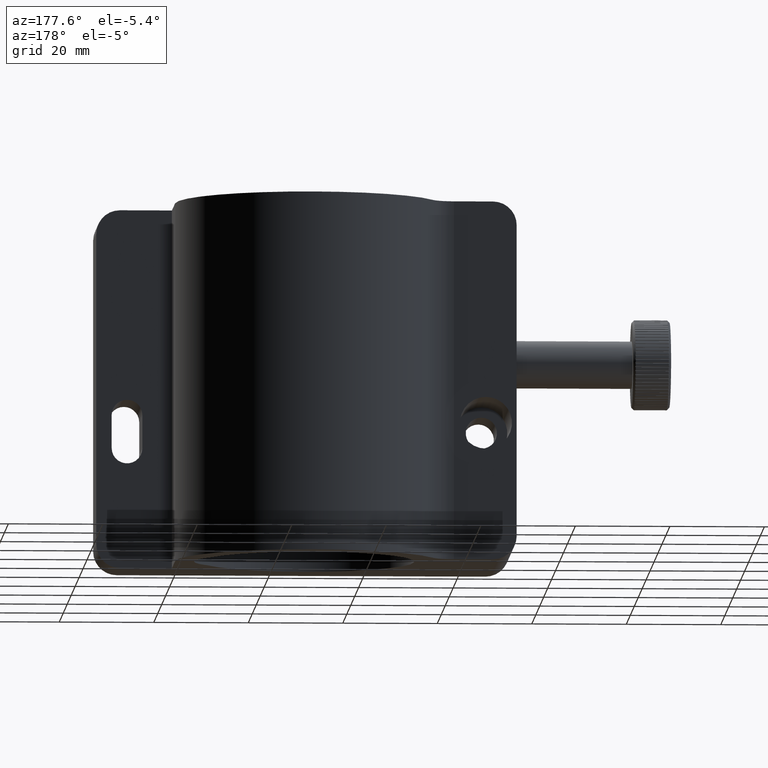
[diagram: clean part render]
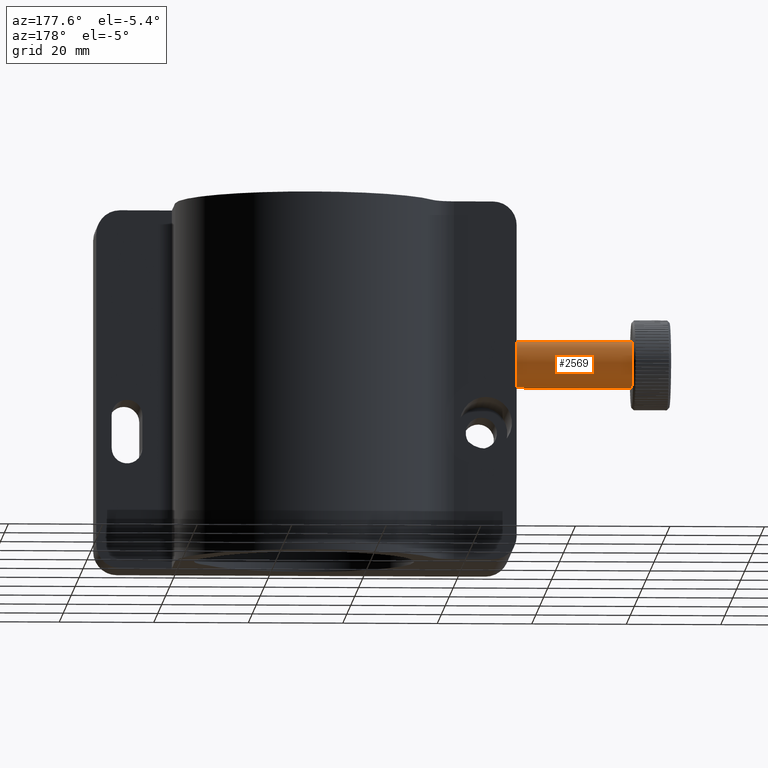
[diagram: same view with one face highlighted and labeled with its STEP entity id]
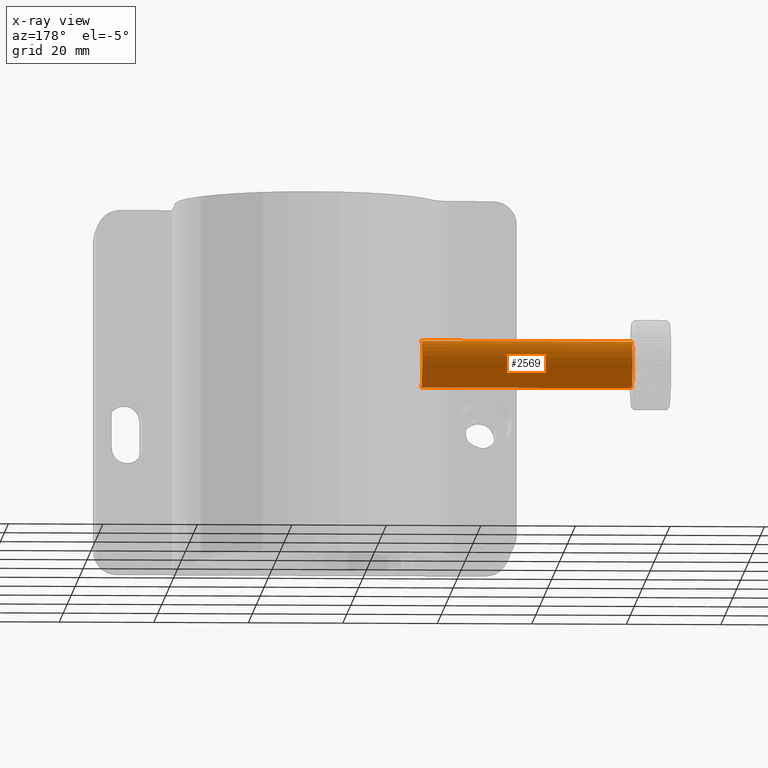
[diagram: x-ray of the same camera — body ghosted, the highlighted face saturated]
A machine part, auxiliary view. The second image highlights one B-rep face of the part: STEP entity #2569.
The next image is the same camera in x-ray: the body ghosted, the highlighted face saturated — about 0% of this face is hidden behind the body in this view.
In plain terms, the highlighted cylindrical surface (edge-blend (fillet) strip) has radius 5 mm, axis along (1, -0, -0).
Its self-contained STEP definition (entity closure, byte-faithful):
#81 = CARTESIAN_POINT ( 'NONE',  ( -96.36907623515101300, 12.38735979671795200, 8.957205155351671200 ) ) ;
#177 = LINE ( 'NONE', #3337, #2203 ) ;
#227 = CARTESIAN_POINT ( 'NONE',  ( -96.36907623515101300, 12.38735979671795200, 8.957205155351671200 ) ) ;
#294 = ORIENTED_EDGE ( 'NONE', *, *, #8518, .F. ) ;
#829 = EDGE_CURVE ( 'NONE', #3169, #7233, #4644, .T. ) ;
#1601 = EDGE_CURVE ( 'NONE', #3923, #3169, #8323, .T. ) ;
#1818 = CARTESIAN_POINT ( 'NONE',  ( -51.86907623515104900, 13.04013621154531100, 3.999999999999990700 ) ) ;
#1924 = CARTESIAN_POINT ( 'NONE',  ( -51.86907623515104900, 12.38735979671795400, 8.957205155351658700 ) ) ;
#2026 = EDGE_CURVE ( 'NONE', #3816, #7233, #177, .T. ) ;
#2054 = DIRECTION ( 'NONE',  ( 0.0000000000000000000, 0.1305552829654714200, -0.9914410310703333200 ) ) ;
#2203 = VECTOR ( 'NONE', #6846, 1000.000000000000000 ) ;
#2245 = CARTESIAN_POINT ( 'NONE',  ( -96.36907623515101300, 13.69291262637266700, -0.9572051553516638400 ) ) ;
#2251 = VECTOR ( 'NONE', #7869, 1000.000000000000000 ) ;
#2357 = ORIENTED_EDGE ( 'NONE', *, *, #2026, .F. ) ;
#2569 = ADVANCED_FACE ( 'NONE', ( #4464 ), #4933, .T. ) ;
#2718 = DIRECTION ( 'NONE',  ( 1.000000000000000000, -3.704151073381377200E-017, -1.550854597374364200E-018 ) ) ;
#2777 = DIRECTION ( 'NONE',  ( 0.0000000000000000000, -0.1305552829654714200, 0.9914410310703333200 ) ) ;
#3169 = VERTEX_POINT ( 'NONE', #1924 ) ;
#3337 = CARTESIAN_POINT ( 'NONE',  ( -96.36907623515101300, 13.69291262637266700, -0.9572051553516638400 ) ) ;
#3816 = VERTEX_POINT ( 'NONE', #2245 ) ;
#3923 = VERTEX_POINT ( 'NONE', #227 ) ;
#4154 = EDGE_LOOP ( 'NONE', ( #294, #5264, #6053, #2357 ) ) ;
#4464 = FACE_OUTER_BOUND ( 'NONE', #4154, .T. ) ;
#4644 = CIRCLE ( 'NONE', #6508, 5.000000000000000900 ) ;
#4933 = CYLINDRICAL_SURFACE ( 'NONE', #5747, 5.000000000000000900 ) ;
#5264 = ORIENTED_EDGE ( 'NONE', *, *, #1601, .T. ) ;
#5747 = AXIS2_PLACEMENT_3D ( 'NONE', #7737, #2718, #2054 ) ;
#6026 = DIRECTION ( 'NONE',  ( 0.0000000000000000000, -0.1305552829654714200, 0.9914410310703333200 ) ) ;
#6053 = ORIENTED_EDGE ( 'NONE', *, *, #829, .T. ) ;
#6360 = CIRCLE ( 'NONE', #7996, 5.000000000000001800 ) ;
#6508 = AXIS2_PLACEMENT_3D ( 'NONE', #1818, #8879, #6026 ) ;
#6846 = DIRECTION ( 'NONE',  ( 1.000000000000000000, -3.704151073381377200E-017, -1.550854597374364200E-018 ) ) ;
#7129 = DIRECTION ( 'NONE',  ( -1.000000000000000000, 3.704151073381357400E-017, 1.550854597374338200E-018 ) ) ;
#7233 = VERTEX_POINT ( 'NONE', #8996 ) ;
#7737 = CARTESIAN_POINT ( 'NONE',  ( -96.36907623515101300, 13.04013621154531000, 4.000000000000003600 ) ) ;
#7786 = CARTESIAN_POINT ( 'NONE',  ( -96.36907623515101300, 13.04013621154531000, 4.000000000000003600 ) ) ;
#7869 = DIRECTION ( 'NONE',  ( 1.000000000000000000, -3.704151073381377200E-017, -1.550854597374364200E-018 ) ) ;
#7996 = AXIS2_PLACEMENT_3D ( 'NONE', #7786, #7129, #2777 ) ;
#8323 = LINE ( 'NONE', #81, #2251 ) ;
#8518 = EDGE_CURVE ( 'NONE', #3923, #3816, #6360, .T. ) ;
#8879 = DIRECTION ( 'NONE',  ( -1.000000000000000000, 3.704151073381357400E-017, 1.550854597374338200E-018 ) ) ;
#8996 = CARTESIAN_POINT ( 'NONE',  ( -51.86907623515104900, 13.69291262637266900, -0.9572051553516768300 ) ) ;